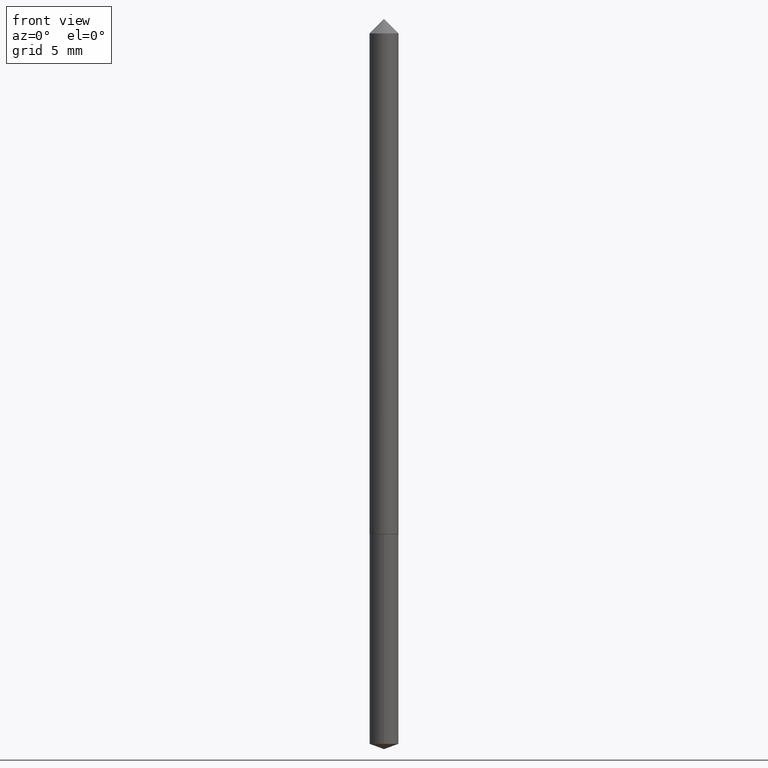
[diagram: clean part render]
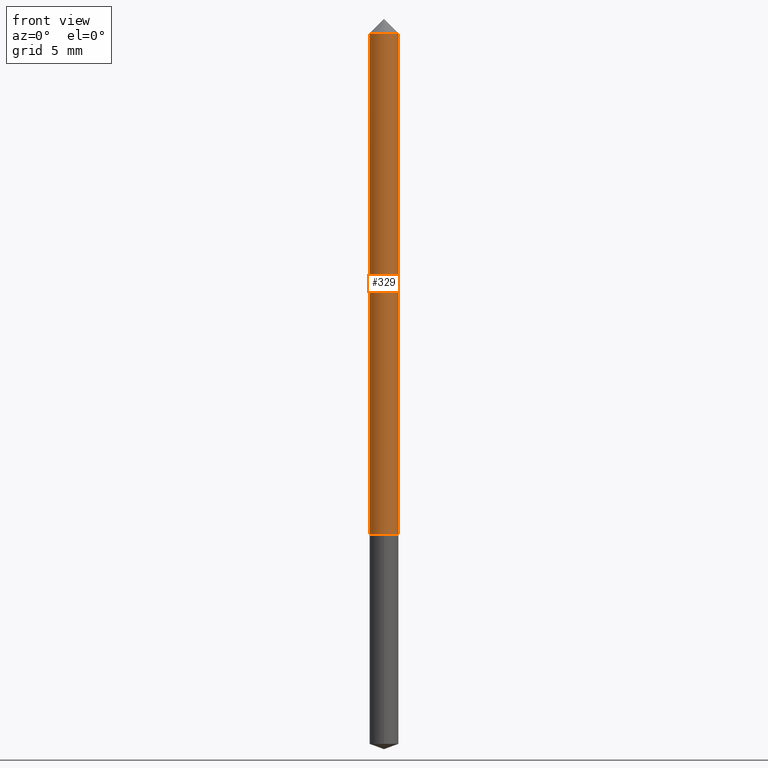
[diagram: same view with one face highlighted and labeled with its STEP entity id]
A machine part, front view. The second image highlights one B-rep face of the part: STEP entity #329.
In plain terms, the highlighted cylindrical surface (edge-blend (fillet) strip) has radius 0.7557 mm, axis along (-0, 0, 1).
Its self-contained STEP definition (entity closure, byte-faithful):
#8 = FACE_OUTER_BOUND ( 'NONE', #192, .T. ) ;
#11 = VERTEX_POINT ( 'NONE', #355 ) ;
#12 = CYLINDRICAL_SURFACE ( 'NONE', #227, 0.02975000000000006459 ) ;
#22 = AXIS2_PLACEMENT_3D ( 'NONE', #215, #122, #187 ) ;
#48 = CIRCLE ( 'NONE', #22, 0.02975000000000012704 ) ;
#58 = CARTESIAN_POINT ( 'NONE',  ( 0.02975000000000000214, -3.168519315000154702E-16, -0.03125000000000020817 ) ) ;
#96 = VERTEX_POINT ( 'NONE', #101 ) ;
#101 = CARTESIAN_POINT ( 'NONE',  ( -0.02975000000000012704, -3.486092273946260702E-15, -1.059000000000000163 ) ) ;
#108 = CIRCLE ( 'NONE', #130, 0.02975000000000000214 ) ;
#122 = DIRECTION ( 'NONE',  ( -2.445468806185136597E-29, 3.491481338843145583E-15, 1.000000000000000000 ) ) ;
#130 = AXIS2_PLACEMENT_3D ( 'NONE', #261, #203, #308 ) ;
#139 = CARTESIAN_POINT ( 'NONE',  ( -0.02975000000000000214, -1.691907300948238426E-15, -0.03125000000000020817 ) ) ;
#172 = LINE ( 'NONE', #285, #191 ) ;
#187 = DIRECTION ( 'NONE',  ( 1.000000000000000000, -6.982962677686261977E-15, 0.000000000000000000 ) ) ;
#191 = VECTOR ( 'NONE', #304, 39.37007874015748143 ) ;
#192 = EDGE_LOOP ( 'NONE', ( #320, #300, #296, #220 ) ) ;
#200 = CARTESIAN_POINT ( 'NONE',  ( -0.02975000000000006459, 2.113864638886302642E-16, -1.463383189350837589E-30 ) ) ;
#203 = DIRECTION ( 'NONE',  ( -2.445468806185136597E-29, 3.491481338843145583E-15, 1.000000000000000000 ) ) ;
#215 = CARTESIAN_POINT ( 'NONE',  ( 2.589751465750059705E-29, -3.697478737834891287E-15, -1.059000000000000163 ) ) ;
#217 = EDGE_CURVE ( 'NONE', #11, #348, #172, .T. ) ;
#220 = ORIENTED_EDGE ( 'NONE', *, *, #246, .F. ) ;
#227 = AXIS2_PLACEMENT_3D ( 'NONE', #244, #295, #297 ) ;
#244 = CARTESIAN_POINT ( 'NONE',  ( 0.000000000000000000, 0.000000000000000000, 0.000000000000000000 ) ) ;
#245 = VERTEX_POINT ( 'NONE', #139 ) ;
#246 = EDGE_CURVE ( 'NONE', #245, #348, #108, .T. ) ;
#261 = CARTESIAN_POINT ( 'NONE',  ( 7.642090019328602662E-31, -1.091087918388490267E-16, -0.03125000000000020817 ) ) ;
#285 = CARTESIAN_POINT ( 'NONE',  ( 0.02975000000000006459, -2.077431396611668872E-16, 1.450662590799293904E-30 ) ) ;
#295 = DIRECTION ( 'NONE',  ( -2.445468806185136597E-29, 3.491481338843145583E-15, 1.000000000000000000 ) ) ;
#296 = ORIENTED_EDGE ( 'NONE', *, *, #217, .T. ) ;
#297 = DIRECTION ( 'NONE',  ( 1.000000000000000000, -6.982962677686266711E-15, 4.876176775795935232E-29 ) ) ;
#300 = ORIENTED_EDGE ( 'NONE', *, *, #326, .T. ) ;
#302 = EDGE_CURVE ( 'NONE', #96, #245, #331, .T. ) ;
#304 = DIRECTION ( 'NONE',  ( -2.445468806185136877E-29, 3.491481338843145188E-15, 1.000000000000000000 ) ) ;
#305 = DIRECTION ( 'NONE',  ( -2.445468806185136877E-29, 3.491481338843145188E-15, 1.000000000000000000 ) ) ;
#308 = DIRECTION ( 'NONE',  ( 1.000000000000000000, -6.982962677686267499E-15, 0.000000000000000000 ) ) ;
#320 = ORIENTED_EDGE ( 'NONE', *, *, #302, .F. ) ;
#326 = EDGE_CURVE ( 'NONE', #96, #11, #48, .T. ) ;
#327 = VECTOR ( 'NONE', #305, 39.37007874015748143 ) ;
#329 = ADVANCED_FACE ( 'NONE', ( #8 ), #12, .T. ) ;
#331 = LINE ( 'NONE', #200, #327 ) ;
#348 = VERTEX_POINT ( 'NONE', #58 ) ;
#355 = CARTESIAN_POINT ( 'NONE',  ( 0.02975000000000012704, -3.905221877496058889E-15, -1.059000000000000163 ) ) ;